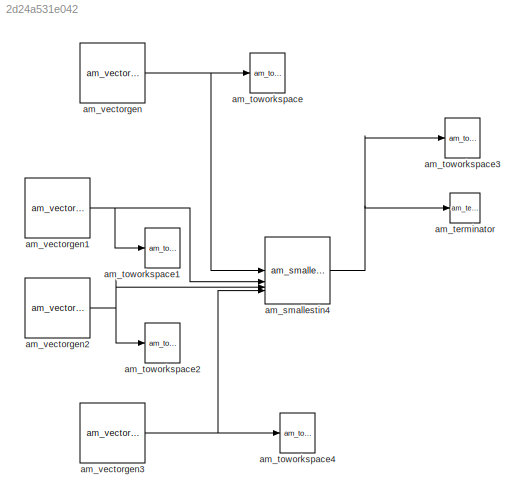
MODEL slx_2d24a531e042
KIND model
CONFIG AbsTol = auto
CONFIG EnableMultiTasking = off
CONFIG FixedStep = auto
CONFIG MaxStep = auto
CONFIG MinStep = auto
CONFIG RelTol = 1e-3
CONFIG SampleTimeConstraint = Unconstrained
CONFIG SolverName = VariableStepAuto
CONFIG StartTime = 0.0
CONFIG StopTime = 10.0
BLOCK [Reference] am_smallestin4  REF=NSA_DEVS_ROUTING/am_smallestin4
  SourceBlock = NSA_DEVS_ROUTING/am_smallestin4
  SourceProductName = Routing
  SourceType = Smallestin4
BLOCK [Reference] am_terminator  REF=NSA_DEVS_LOGISTICS/am_terminator
  SourceBlock = NSA_DEVS_LOGISTICS/am_terminator
  SourceProductName = Logistics
  SourceType = Terminator
BLOCK [Reference] am_toworkspace  REF=NSA_DEVS_SINKS/am_toworkspace
  SourceBlock = NSA_DEVS_SINKS/am_toworkspace
  SourceProductName = Sinks
  SourceType = ToWorkspace
BLOCK [Reference] am_toworkspace1  REF=NSA_DEVS_SINKS/am_toworkspace
  SourceBlock = NSA_DEVS_SINKS/am_toworkspace
  SourceProductName = Sinks
  SourceType = ToWorkspace
BLOCK [Reference] am_toworkspace2  REF=NSA_DEVS_SINKS/am_toworkspace
  SourceBlock = NSA_DEVS_SINKS/am_toworkspace
  SourceProductName = Sinks
  SourceType = ToWorkspace
BLOCK [Reference] am_toworkspace3  REF=NSA_DEVS_SINKS/am_toworkspace
  SourceBlock = NSA_DEVS_SINKS/am_toworkspace
  SourceProductName = Sinks
  SourceType = ToWorkspace
BLOCK [Reference] am_toworkspace4  REF=NSA_DEVS_SINKS/am_toworkspace
  SourceBlock = NSA_DEVS_SINKS/am_toworkspace
  SourceProductName = Sinks
  SourceType = ToWorkspace
BLOCK [Reference] am_vectorgen  REF=NSA_DEVS_SOURCES/am_vectorgen
  SourceBlock = NSA_DEVS_SOURCES/am_vectorgen
  SourceProductName = Sources
  SourceType = Vectorgen
BLOCK [Reference] am_vectorgen1  REF=NSA_DEVS_SOURCES/am_vectorgen
  SourceBlock = NSA_DEVS_SOURCES/am_vectorgen
  SourceProductName = Sources
  SourceType = Vectorgen
BLOCK [Reference] am_vectorgen2  REF=NSA_DEVS_SOURCES/am_vectorgen
  SourceBlock = NSA_DEVS_SOURCES/am_vectorgen
  SourceProductName = Sources
  SourceType = Vectorgen
BLOCK [Reference] am_vectorgen3  REF=NSA_DEVS_SOURCES/am_vectorgen
  SourceBlock = NSA_DEVS_SOURCES/am_vectorgen
  SourceProductName = Sources
  SourceType = Vectorgen
NET am_smallestin4:1 -> am_terminator:1, am_toworkspace3:1
NET am_vectorgen1:1 -> am_smallestin4:2, am_toworkspace1:1
NET am_vectorgen2:1 -> am_smallestin4:3, am_toworkspace2:1
NET am_vectorgen3:1 -> am_smallestin4:4, am_toworkspace4:1
NET am_vectorgen:1 -> am_smallestin4:1, am_toworkspace:1
note: NET lines group one-source signal fan-out (src -> all destinations, sorted); 1:1 wires keep LINE
